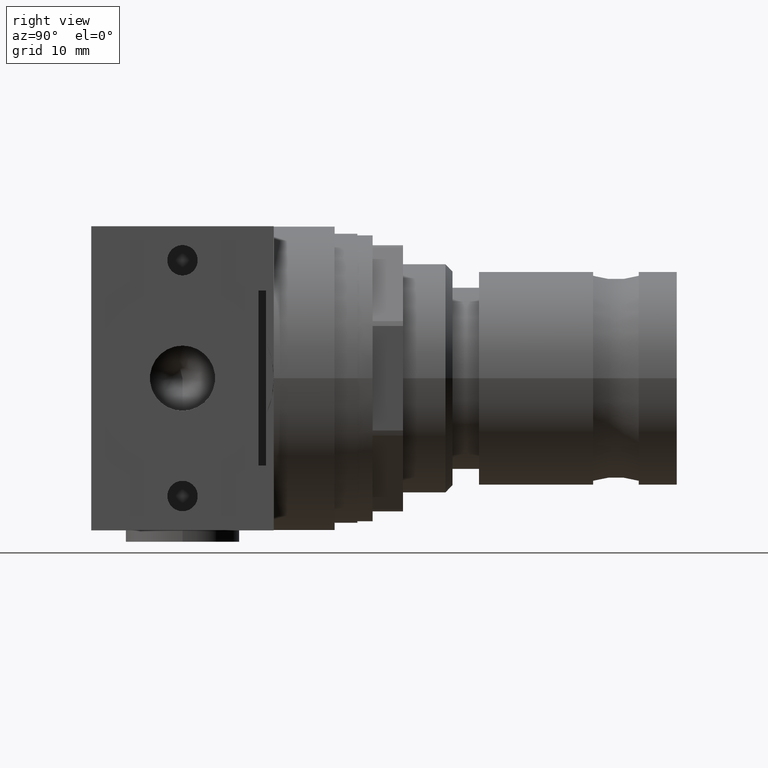
[diagram: clean part render]
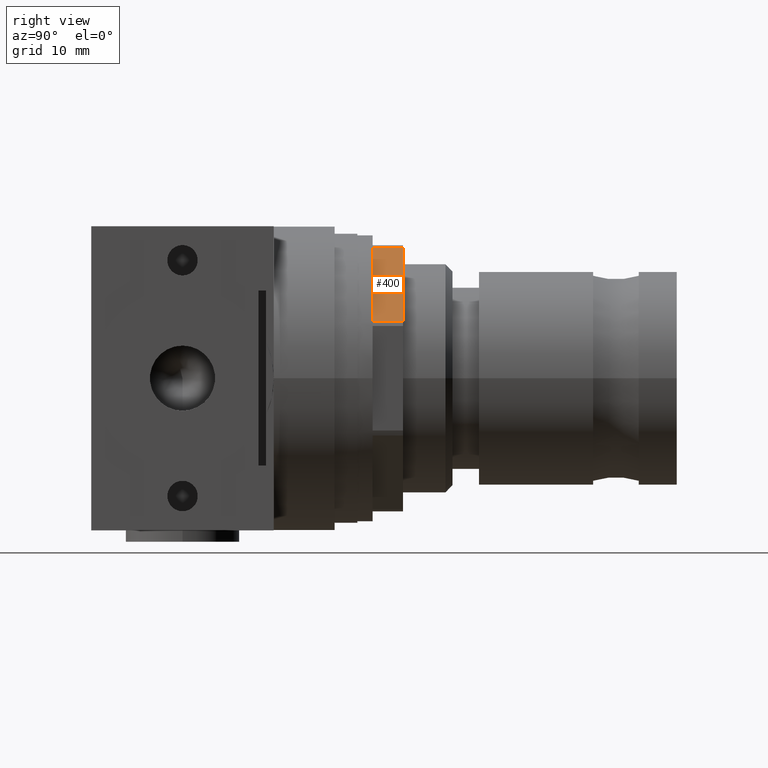
[diagram: same view with one face highlighted and labeled with its STEP entity id]
A machine part, right view. The second image highlights one B-rep face of the part: STEP entity #400.
In plain terms, the highlighted planar face has unit normal (0.7071, 0, 0.7071).
Its self-contained STEP definition (entity closure, byte-faithful):
#400 = ADVANCED_FACE( '', ( #822 ), #823, .T. );
#822 = FACE_OUTER_BOUND( '', #1267, .T. );
#823 = PLANE( '', #1268 );
#1267 = EDGE_LOOP( '', ( #2141, #2142, #2143, #2144 ) );
#1268 = AXIS2_PLACEMENT_3D( '', #2145, #2146, #2147 );
#2141 = ORIENTED_EDGE( '', *, *, #2588, .T. );
#2142 = ORIENTED_EDGE( '', *, *, #2727, .T. );
#2143 = ORIENTED_EDGE( '', *, *, #2590, .T. );
#2144 = ORIENTED_EDGE( '', *, *, #2618, .T. );
#2145 = CARTESIAN_POINT( '', ( 5.00000000000000, -17.5000000000000, -7.24873734152916 ) );
#2146 = DIRECTION( '', ( 0.000000000000000, -0.707106781186548, -0.707106781186547 ) );
#2147 = DIRECTION( '', ( 0.000000000000000, 0.707106781186547, -0.707106781186548 ) );
#2588 = EDGE_CURVE( '', #3094, #3092, #3095, .T. );
#2590 = EDGE_CURVE( '', #3098, #3096, #3099, .F. );
#2618 = EDGE_CURVE( '', #3096, #3094, #3142, .T. );
#2727 = EDGE_CURVE( '', #3092, #3098, #3290, .T. );
#3092 = VERTEX_POINT( '', #3747 );
#3094 = VERTEX_POINT( '', #3749 );
#3095 = LINE( '', #3750, #3751 );
#3096 = VERTEX_POINT( '', #3752 );
#3098 = VERTEX_POINT( '', #3754 );
#3099 = LINE( '', #3755, #3756 );
#3142 = LINE( '', #3809, #3810 );
#3290 = LINE( '', #4018, #4019 );
#3747 = CARTESIAN_POINT( '', ( 9.00000000000000, -7.51690019428426, -17.2318371472449 ) );
#3749 = CARTESIAN_POINT( '', ( 5.00000000000000, -7.51690019428427, -17.2318371472449 ) );
#3750 = CARTESIAN_POINT( '', ( 9.00000000000000, -7.51690019428427, -17.2318371472449 ) );
#3751 = VECTOR( '', #4352, 1000.00000000000 );
#3752 = CARTESIAN_POINT( '', ( 5.00000000000000, -17.2318371472449, -7.51690019428426 ) );
#3754 = CARTESIAN_POINT( '', ( 9.00000000000000, -17.2318371472449, -7.51690019428426 ) );
#3755 = CARTESIAN_POINT( '', ( 9.00000000000000, -17.2318371472449, -7.51690019428426 ) );
#3756 = VECTOR( '', #4356, 1000.00000000000 );
#3809 = CARTESIAN_POINT( '', ( 5.00000000000000, -17.5000000000000, -7.24873734152916 ) );
#3810 = VECTOR( '', #4400, 1000.00000000000 );
#4018 = CARTESIAN_POINT( '', ( 9.00000000000000, -2.97436867076459, -21.7743686707646 ) );
#4019 = VECTOR( '', #4503, 1000.00000000000 );
#4352 = DIRECTION( '', ( 1.00000000000000, -0.000000000000000, -0.000000000000000 ) );
#4356 = DIRECTION( '', ( 1.00000000000000, -0.000000000000000, -0.000000000000000 ) );
#4400 = DIRECTION( '', ( 0.000000000000000, 0.707106781186547, -0.707106781186548 ) );
#4503 = DIRECTION( '', ( 0.000000000000000, -0.707106781186547, 0.707106781186548 ) );